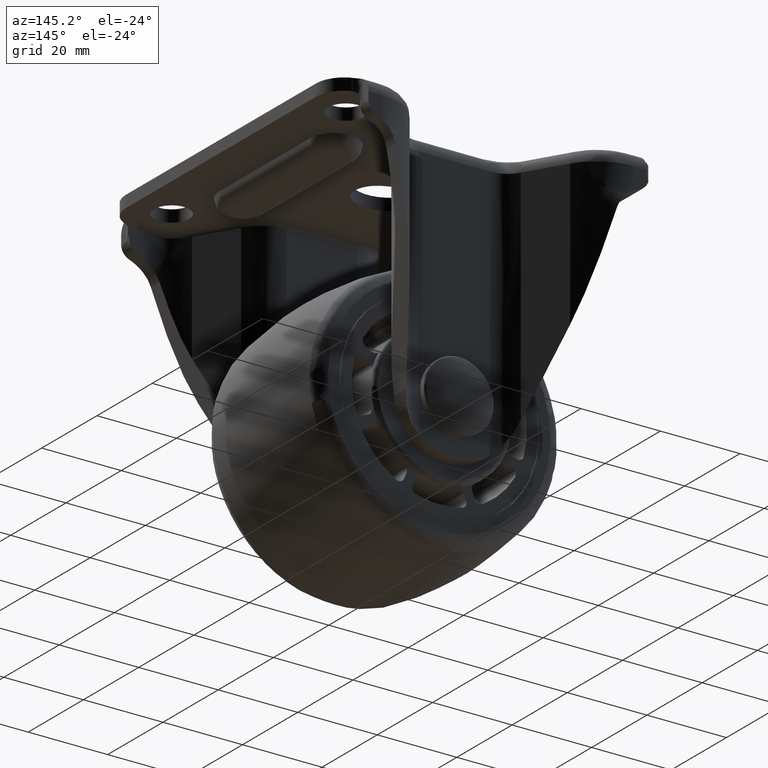
[diagram: clean part render]
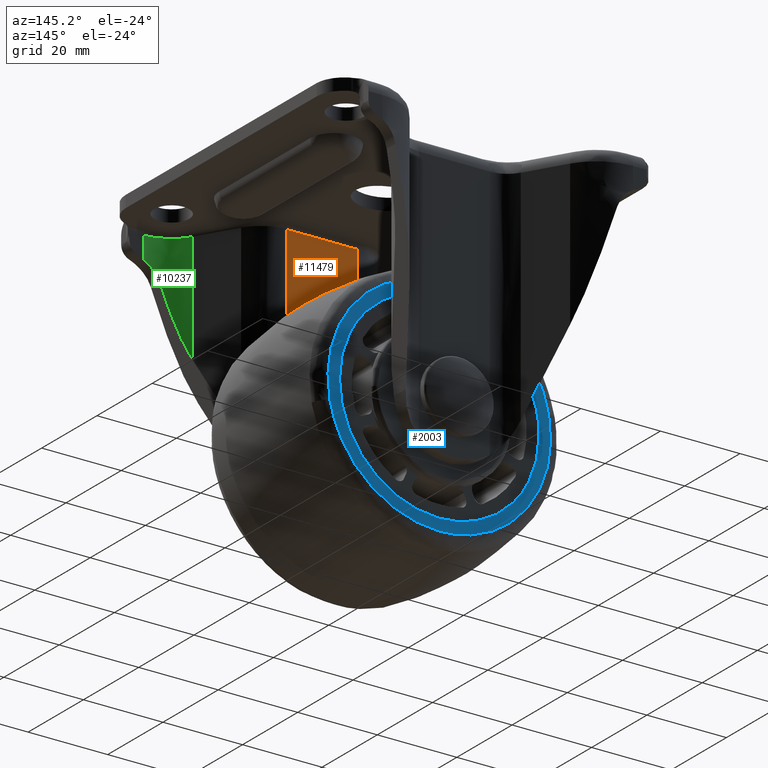
[diagram: same view with three faces highlighted in distinct colors, each labeled with its STEP entity id]
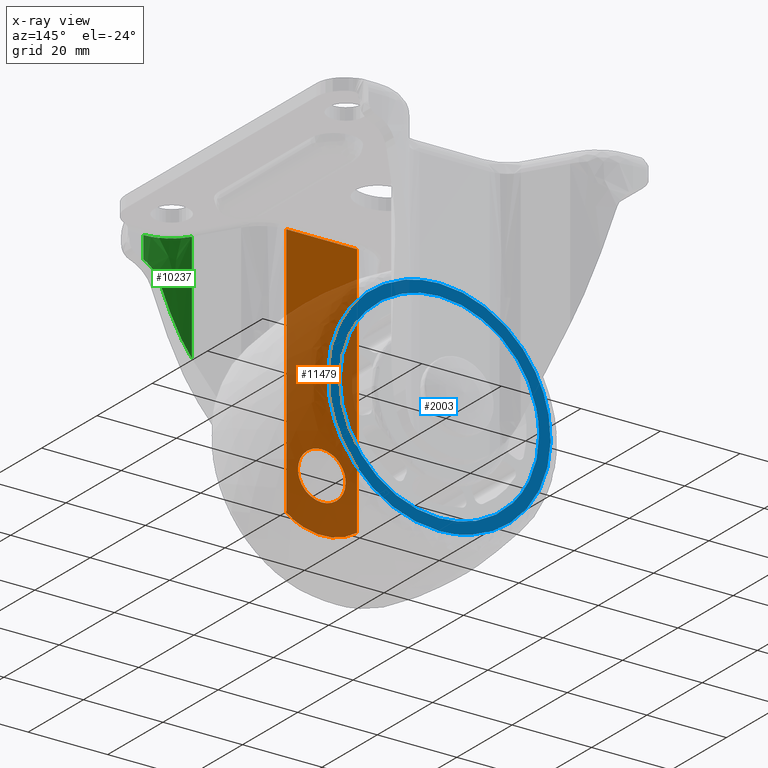
[diagram: x-ray of the same camera — body ghosted, the three highlighted faces saturated]
A machine part, auxiliary view with three faces highlighted in distinct colors.
The next image is the same camera in x-ray (body ghosted, the three faces saturated) — at least one of them is partly hidden behind the body in this view.
Their STEP definitions:

[orange] entity #11479 — the highlighted face is a freeform B-spline surface patch.
#9265=CARTESIAN_POINT('',(-4.130127253829357,-22.499997000002200,4.352245935374123));
#9266=VERTEX_POINT('',#9265);
#9267=CARTESIAN_POINT('',(-5.999999999999838,-22.499996999999851,-0.000001396979614));
#9268=VERTEX_POINT('',#9267);
#9269=CARTESIAN_POINT('',(-4.130127253829357,-22.499997000002200,4.352245935374123));
#9270=CARTESIAN_POINT('',(-4.553441643368708,-22.499997000002029,3.950867033075255));
#9271=CARTESIAN_POINT('',(-5.138845332192016,-22.499997000001539,3.204777223040784));
#9272=CARTESIAN_POINT('',(-5.819987399425205,-22.499997000000850,1.724313948742369));
#9273=CARTESIAN_POINT('',(-6.000437413251930,-22.499997000000182,0.684847521663678));
#9274=CARTESIAN_POINT('',(-5.999999999999838,-22.499996999999851,-0.000001396979614));
#9275=B_SPLINE_CURVE_WITH_KNOTS('',3,(#9269,#9270,#9271,#9272,#9273,#9274),.UNSPECIFIED.,.F.,.U.,(4,1,1,4),(0.000000043649202,1.749981452222673,2.815165169053650,4.869502438314698),.UNSPECIFIED.);
#9276=EDGE_CURVE('',#9266,#9268,#9275,.T.);
#9323=CARTESIAN_POINT('',(4.130127253829341,-22.499997000002189,-4.352245935374105));
#9324=VERTEX_POINT('',#9323);
#9330=CARTESIAN_POINT('',(0.0,-22.499996999999851,-6.0));
#9331=VERTEX_POINT('',#9330);
#9332=CARTESIAN_POINT('',(0.0,-22.499996999999851,-6.0));
#9333=CARTESIAN_POINT('',(0.450795490049021,-22.499997000000221,-6.000086516397657));
#9334=CARTESIAN_POINT('',(1.257412118632930,-22.499997000000299,-5.908650579430608));
#9335=CARTESIAN_POINT('',(2.367390492413930,-22.499997000001251,-5.547756098417890));
#9336=CARTESIAN_POINT('',(3.311968122547325,-22.499997000001610,-5.041101085681683));
#9337=CARTESIAN_POINT('',(3.871997163926011,-22.499997000002100,-4.597241153843157));
#9338=CARTESIAN_POINT('',(4.130127253829341,-22.499997000002189,-4.352245935374105));
#9339=B_SPLINE_CURVE_WITH_KNOTS('',3,(#9332,#9333,#9334,#9335,#9336,#9337,#9338),.UNSPECIFIED.,.F.,.U.,(4,1,1,1,4),(0.000000035592270,1.352367316623270,2.420005541752595,3.487680438584721,4.555335979050203),.UNSPECIFIED.);
#9340=EDGE_CURVE('',#9331,#9324,#9339,.T.);
#9342=CARTESIAN_POINT('',(-5.999999999999838,-22.499996999999851,-0.000001396979614));
#9343=CARTESIAN_POINT('',(-6.000023086217226,-22.499996999999841,-0.343613218627307));
#9344=CARTESIAN_POINT('',(-5.936601400131302,-22.499996999999841,-1.079921358328648));
#9345=CARTESIAN_POINT('',(-5.647205881875248,-22.499996999999940,-2.125755490163891));
#9346=CARTESIAN_POINT('',(-5.193337990886600,-22.499996999999709,-3.055545849298561));
#9347=CARTESIAN_POINT('',(-4.555721012143845,-22.499996999999968,-3.961064408039216));
#9348=CARTESIAN_POINT('',(-3.826259261117780,-22.499996999999851,-4.664112685940932));
#9349=CARTESIAN_POINT('',(-2.926603507291175,-22.499996999999841,-5.265149634956444));
#9350=CARTESIAN_POINT('',(-1.742341266816845,-22.499996999999880,-5.816663010592572));
#9351=CARTESIAN_POINT('',(-0.687294886531111,-22.499996999999791,-6.000460011594599));
#9352=CARTESIAN_POINT('',(0.0,-22.499996999999851,-6.0));
#9353=B_SPLINE_CURVE_WITH_KNOTS('',3,(#9342,#9343,#9344,#9345,#9346,#9347,#9348,#9349,#9350,#9351,#9352),.UNSPECIFIED.,.F.,.U.,(4,1,1,1,1,1,1,1,4),(0.000000152009948,1.030840567576297,2.208944418420963,3.239793992710176,4.123393643306499,5.522347370948843,6.258661234375847,7.363154419309906,9.424836309894799),.UNSPECIFIED.);
#9354=EDGE_CURVE('',#9268,#9331,#9353,.T.);
#9377=CARTESIAN_POINT('',(0.0,-22.499996999999851,6.0));
#9378=VERTEX_POINT('',#9377);
#9379=CARTESIAN_POINT('',(0.0,-22.499996999999851,6.0));
#9380=CARTESIAN_POINT('',(-0.450788434874711,-22.499997000000128,6.000059843482184));
#9381=CARTESIAN_POINT('',(-1.399796225174297,-22.499997000000668,5.892622321565265));
#9382=CARTESIAN_POINT('',(-2.837311071448159,-22.499997000001180,5.367986337136553));
#9383=CARTESIAN_POINT('',(-3.717219296337326,-22.499997000002072,4.744376456580225));
#9384=CARTESIAN_POINT('',(-4.130127253829357,-22.499997000002200,4.352245935374123));
#9385=B_SPLINE_CURVE_WITH_KNOTS('',3,(#9379,#9380,#9381,#9382,#9383,#9384),.UNSPECIFIED.,.F.,.U.,(4,1,1,4),(0.000000035592753,1.352367316623535,2.847084426144891,4.555335979050212),.UNSPECIFIED.);
#9386=EDGE_CURVE('',#9378,#9266,#9385,.T.);
#9388=CARTESIAN_POINT('',(5.999999999999838,-22.499996999999841,0.000001396979707));
#9389=VERTEX_POINT('',#9388);
#9390=CARTESIAN_POINT('',(5.999999999999838,-22.499996999999841,0.000001396979707));
#9391=CARTESIAN_POINT('',(6.000163368158743,-22.499996999999929,0.515432001934599));
#9392=CARTESIAN_POINT('',(5.894953435014236,-22.499996999999802,1.325284715811609));
#9393=CARTESIAN_POINT('',(5.534644106136241,-22.499996999999858,2.372508968148123));
#9394=CARTESIAN_POINT('',(5.058661697400599,-22.499996999999912,3.290062486199378));
#9395=CARTESIAN_POINT('',(4.375018762368638,-22.499996999999730,4.166079560350140));
#9396=CARTESIAN_POINT('',(3.493158300044612,-22.499997000000040,4.917299942122296));
#9397=CARTESIAN_POINT('',(2.471593553358666,-22.499996999999659,5.512781367085997));
#9398=CARTESIAN_POINT('',(1.300811723806056,-22.499996999999912,5.907510624143310));
#9399=CARTESIAN_POINT('',(0.417243111416493,-22.499996999999869,6.000050044701339));
#9400=CARTESIAN_POINT('',(0.0,-22.499996999999851,6.0));
#9401=B_SPLINE_CURVE_WITH_KNOTS('',3,(#9390,#9391,#9392,#9393,#9394,#9395,#9396,#9397,#9398,#9399,#9400),.UNSPECIFIED.,.F.,.U.,(4,1,1,1,1,1,1,1,4),(0.000000152012914,1.546243465384356,2.429841717990091,3.313437329582073,4.638832325522293,5.743251481139655,6.774100118434890,8.173101899288664,9.424836309894722),.UNSPECIFIED.);
#9402=EDGE_CURVE('',#9389,#9378,#9401,.T.);
#9404=CARTESIAN_POINT('',(4.130127253829341,-22.499997000002189,-4.352245935374105));
#9405=CARTESIAN_POINT('',(4.461346717343182,-22.499997000002018,-4.038069591427701));
#9406=CARTESIAN_POINT('',(4.969460680172463,-22.499997000001692,-3.431402418470786));
#9407=CARTESIAN_POINT('',(5.531621919380246,-22.499997000001152,-2.404602122561565));
#9408=CARTESIAN_POINT('',(5.904020351010472,-22.499997000000452,-1.293414863453130));
#9409=CARTESIAN_POINT('',(6.000086778270428,-22.499997000000320,-0.456516994118505));
#9410=CARTESIAN_POINT('',(5.999999999999838,-22.499996999999841,0.000001396979707));
#9411=B_SPLINE_CURVE_WITH_KNOTS('',3,(#9404,#9405,#9406,#9407,#9408,#9409,#9410),.UNSPECIFIED.,.F.,.U.,(4,1,1,1,4),(0.000000043649115,1.369549477616621,2.358689233480969,3.499953004327731,4.869502438314786),.UNSPECIFIED.);
#9412=EDGE_CURVE('',#9324,#9389,#9411,.T.);
#10280=CARTESIAN_POINT('',(8.881149699124109,-22.499996999999851,-10.588224849900380));
#10281=VERTEX_POINT('',#10280);
#10282=CARTESIAN_POINT('',(8.881149699124109,-22.499996999999901,53.500003000000000));
#10283=VERTEX_POINT('',#10282);
#10284=CARTESIAN_POINT('',(8.881149699124109,-22.499996999999851,-10.588224849900380));
#10285=CARTESIAN_POINT('',(8.881149699124109,-22.499996999999901,53.500003000000000));
#10286=QUASI_UNIFORM_CURVE('',1,(#10284,#10285),.UNSPECIFIED.,.F.,.U.);
#10287=EDGE_CURVE('',#10281,#10283,#10286,.T.);
#11435=CARTESIAN_POINT('',(-9.768376519639922,-22.499996999999901,56.846653259362071));
#11436=CARTESIAN_POINT('',(-9.768376519639922,-22.499996999999901,-16.846656848655840));
#11437=CARTESIAN_POINT('',(9.768376996061825,-22.499996999999901,56.846653259362071));
#11438=CARTESIAN_POINT('',(9.768376996061825,-22.499996999999901,-16.846656848655840));
#11439=B_SPLINE_SURFACE_WITH_KNOTS('',1,1,((#11435,#11437),(#11436,#11438)),.UNSPECIFIED.,.F.,.F.,.U.,(2,2),(2,2),(0.0,73.693310108017911),(0.0,19.536753515701751),.UNSPECIFIED.);
#11440=CARTESIAN_POINT('',(-8.881149699124199,-22.499996999999851,-10.588224849900261));
#11441=VERTEX_POINT('',#11440);
#11442=CARTESIAN_POINT('',(-8.881149699124199,-22.499996999999851,53.500003000000000));
#11443=VERTEX_POINT('',#11442);
#11444=CARTESIAN_POINT('',(-8.881149699124199,-22.499996999999851,-10.588224849900261));
#11445=CARTESIAN_POINT('',(-8.881149699124199,-22.499996999999851,53.500003000000000));
#11446=QUASI_UNIFORM_CURVE('',1,(#11444,#11445),.UNSPECIFIED.,.F.,.U.);
#11447=EDGE_CURVE('',#11441,#11443,#11446,.T.);
#11448=ORIENTED_EDGE('',*,*,#11447,.T.);
#11449=CARTESIAN_POINT('',(-8.881149699124199,-22.499996999999851,53.500003000000000));
#11450=CARTESIAN_POINT('',(8.881149699124109,-22.499996999999901,53.500003000000000));
#11451=QUASI_UNIFORM_CURVE('',1,(#11449,#11450),.UNSPECIFIED.,.F.,.U.);
#11452=EDGE_CURVE('',#11443,#10283,#11451,.T.);
#11453=ORIENTED_EDGE('',*,*,#11452,.T.);
#11454=ORIENTED_EDGE('',*,*,#10287,.F.);
#11455=CARTESIAN_POINT('',(-8.881149699124199,-22.499996999999851,-10.588224849900261));
#11456=CARTESIAN_POINT('',(-8.003607832519460,-22.499996999999841,-11.233204240560219));
#11457=CARTESIAN_POINT('',(-6.365754512921816,-22.499996999999830,-12.180886370924020));
#11458=CARTESIAN_POINT('',(-4.162801986321525,-22.499996999999919,-12.951741968923900));
#11459=CARTESIAN_POINT('',(-2.273873686656827,-22.499996999999670,-13.359980792118151));
#11460=CARTESIAN_POINT('',(-0.348126100300443,-22.499997000000420,-13.551291613181130));
#11461=CARTESIAN_POINT('',(2.131759955150131,-22.499996999999361,-13.428532215796210));
#11462=CARTESIAN_POINT('',(4.312489957043629,-22.499997000000160,-12.923171846836739));
#11463=CARTESIAN_POINT('',(6.667458579177092,-22.499996999999649,-12.006265035334740));
#11464=CARTESIAN_POINT('',(8.003607268865578,-22.499996999999968,-11.233216174068360));
#11465=CARTESIAN_POINT('',(8.881149699124109,-22.499996999999851,-10.588224849900380));
#11466=B_SPLINE_CURVE_WITH_KNOTS('',3,(#11455,#11456,#11457,#11458,#11459,#11460,#11461,#11462,#11463,#11464,#11465),.UNSPECIFIED.,.F.,.U.,(4,1,1,1,1,1,1,1,4),(0.000000054522978,3.267180752254211,5.643324096917235,6.979903055922604,9.059051894187329,11.435122852230750,14.405315932280789,15.741894478587181,19.009075791508600),.UNSPECIFIED.);
#11467=EDGE_CURVE('',#11441,#10281,#11466,.T.);
#11468=ORIENTED_EDGE('',*,*,#11467,.F.);
#11469=EDGE_LOOP('',(#11448,#11453,#11454,#11468));
#11470=FACE_OUTER_BOUND('',#11469,.T.);
#11471=ORIENTED_EDGE('',*,*,#9402,.T.);
#11472=ORIENTED_EDGE('',*,*,#9386,.T.);
#11473=ORIENTED_EDGE('',*,*,#9276,.T.);
#11474=ORIENTED_EDGE('',*,*,#9354,.T.);
#11475=ORIENTED_EDGE('',*,*,#9340,.T.);
#11476=ORIENTED_EDGE('',*,*,#9412,.T.);
#11477=EDGE_LOOP('',(#11471,#11472,#11473,#11474,#11475,#11476));
#11478=FACE_BOUND('',#11477,.T.);
#11479=ADVANCED_FACE('',(#11470,#11478),#11439,.F.);

[blue] entity #2003 — the highlighted face is a freeform B-spline surface patch.
#1484=CARTESIAN_POINT('',(27.502757301101720,19.999999999999879,-5.246431544666812));
#1485=VERTEX_POINT('',#1484);
#1486=CARTESIAN_POINT('',(0.0,19.999999999999751,27.998691090506650));
#1487=VERTEX_POINT('',#1486);
#1488=CARTESIAN_POINT('',(27.502757301101720,19.999999999999879,-5.246431544666812));
#1489=CARTESIAN_POINT('',(27.743164598492061,19.999999999999869,-3.986416941224706));
#1490=CARTESIAN_POINT('',(28.058068481342779,19.999999999999829,-1.369432952036780));
#1491=CARTESIAN_POINT('',(27.971277000315570,19.999999999999918,2.745175214878927));
#1492=CARTESIAN_POINT('',(27.287347839801480,19.999999999999758,6.675098508161810));
#1493=CARTESIAN_POINT('',(25.941157680191729,19.999999999999758,10.832335335407549));
#1494=CARTESIAN_POINT('',(24.169408895971429,20.000000000000060,14.339463418104650));
#1495=CARTESIAN_POINT('',(22.017997854695960,19.999999999999439,17.381134434863998));
#1496=CARTESIAN_POINT('',(19.641022460410380,20.000000000000071,20.080168328336971));
#1497=CARTESIAN_POINT('',(16.861405144192119,19.999999999999719,22.475501605578319));
#1498=CARTESIAN_POINT('',(13.392849185438349,19.999999999999680,24.683821317993711));
#1499=CARTESIAN_POINT('',(10.473531437630520,19.999999999999790,26.033121039621602));
#1500=CARTESIAN_POINT('',(7.183060958212796,19.999999999999901,27.121934818699099));
#1501=CARTESIAN_POINT('',(3.912394890526687,19.999999999999460,27.817687081596770));
#1502=CARTESIAN_POINT('',(1.282756755907099,19.999999999999499,27.998740291143879));
#1503=CARTESIAN_POINT('',(0.0,19.999999999999751,27.998691090506650));
#1504=B_SPLINE_CURVE_WITH_KNOTS('',3,(#1488,#1489,#1490,#1491,#1492,#1493,#1494,#1495,#1496,#1497,#1498,#1499,#1500,#1501,#1502,#1503),.UNSPECIFIED.,.F.,.U.,(4,1,1,1,1,1,1,1,1,1,1,1,1,4),(0.000000070770831,3.848236809704858,7.888951305254281,12.314492726245311,15.777946739165349,20.973128510498000,24.051795542403731,26.937902894380962,31.748289763801989,35.019334425048093,39.252444968296103,41.369018298731653,45.409692849141948,49.257966987562590),.UNSPECIFIED.);
#1505=EDGE_CURVE('',#1485,#1487,#1504,.T.);
#1507=CARTESIAN_POINT('',(-27.502757301101720,19.999999999999869,5.246431544666804));
#1508=VERTEX_POINT('',#1507);
#1509=CARTESIAN_POINT('',(0.0,19.999999999999751,27.998691090506650));
#1510=CARTESIAN_POINT('',(-1.864581548584949,19.999999999999790,27.998924161802069));
#1511=CARTESIAN_POINT('',(-5.240912376388767,19.999999999999741,27.660176566823282));
#1512=CARTESIAN_POINT('',(-9.564460870913189,19.999999999999790,26.413169154524940));
#1513=CARTESIAN_POINT('',(-13.019801682003550,19.999999999999851,24.865192470680480));
#1514=CARTESIAN_POINT('',(-16.392393620607120,19.999999999999609,22.831490981883320));
#1515=CARTESIAN_POINT('',(-19.815319122664839,20.000000000000369,19.984281892225180));
#1516=CARTESIAN_POINT('',(-23.014279828734150,19.999999999999140,16.197561375411809));
#1517=CARTESIAN_POINT('',(-25.833838387810822,20.000000000000270,11.340626609799610));
#1518=CARTESIAN_POINT('',(-27.069014077244891,19.999999999999719,7.523685507394849));
#1519=CARTESIAN_POINT('',(-27.502757301101720,19.999999999999869,5.246431544666804));
#1520=B_SPLINE_CURVE_WITH_KNOTS('',3,(#1509,#1510,#1511,#1512,#1513,#1514,#1515,#1516,#1517,#1518,#1519),.UNSPECIFIED.,.F.,.U.,(4,1,1,1,1,1,1,1,4),(0.000000053910462,5.593724760074849,10.129213976309829,13.455222866426270,16.932423127280771,21.921393261906339,26.759257935103250,31.748281384768859,38.702659205214268),.UNSPECIFIED.);
#1521=EDGE_CURVE('',#1487,#1508,#1520,.T.);
#1580=CARTESIAN_POINT('',(0.0,20.0,-27.998691090506650));
#1581=VERTEX_POINT('',#1580);
#1582=CARTESIAN_POINT('',(0.0,20.0,-27.998691090506650));
#1583=CARTESIAN_POINT('',(1.411035472931100,20.000000000000071,-27.998766732122132));
#1584=CARTESIAN_POINT('',(3.829920536427983,19.999999999999840,-27.815430776140879));
#1585=CARTESIAN_POINT('',(7.634428674420414,20.000000000000110,-27.023703583116799));
#1586=CARTESIAN_POINT('',(11.068647177458731,19.999999999999670,-25.818667910256199));
#1587=CARTESIAN_POINT('',(14.341597858067111,20.000000000000352,-24.123509456208090));
#1588=CARTESIAN_POINT('',(17.347901098481032,19.999999999999670,-22.081551067869391));
#1589=CARTESIAN_POINT('',(19.948862793094030,19.999999999999631,-19.758846594525622));
#1590=CARTESIAN_POINT('',(22.488524090276620,20.0,-16.817560632481030));
#1591=CARTESIAN_POINT('',(24.621532735155942,20.000000000000419,-13.561810930865541));
#1592=CARTESIAN_POINT('',(26.438682654588920,19.999999999998732,-9.558052108725883));
#1593=CARTESIAN_POINT('',(27.219578738944470,20.000000000000661,-6.731492296372188));
#1594=CARTESIAN_POINT('',(27.502757301101720,19.999999999999879,-5.246431544666812));
#1595=B_SPLINE_CURVE_WITH_KNOTS('',3,(#1582,#1583,#1584,#1585,#1586,#1587,#1588,#1589,#1590,#1591,#1592,#1593,#1594),.UNSPECIFIED.,.F.,.U.,(4,1,1,1,1,1,1,1,1,1,4),(0.000000053931920,4.233099271915975,7.256744849527941,11.641042820726190,15.118248801799670,18.293091666491531,22.526149759230741,25.549795738470252,29.934092232752000,34.167216398744742,38.702659205214253),.UNSPECIFIED.);
#1596=EDGE_CURVE('',#1581,#1485,#1595,.T.);
#1602=CARTESIAN_POINT('',(-27.502757301101720,19.999999999999869,5.246431544666804));
#1603=CARTESIAN_POINT('',(-27.743147686778041,19.999999999999851,3.986418271306176));
#1604=CARTESIAN_POINT('',(-28.096567708367349,19.999999999999890,1.050279841555419));
#1605=CARTESIAN_POINT('',(-27.941309108740089,19.999999999999869,-3.003553819527101));
#1606=CARTESIAN_POINT('',(-27.204368139600700,19.999999999999851,-6.918168946015753));
#1607=CARTESIAN_POINT('',(-26.107264102019020,19.999999999999961,-10.346288043054630));
#1608=CARTESIAN_POINT('',(-24.396011081419459,19.999999999999929,-13.946232466822989));
#1609=CARTESIAN_POINT('',(-22.315217253494499,19.999999999999691,-17.043834432175679));
#1610=CARTESIAN_POINT('',(-19.725875927242640,20.000000000000391,-19.983728515323339));
#1611=CARTESIAN_POINT('',(-17.206621345333261,19.999999999999002,-22.185110676411259));
#1612=CARTESIAN_POINT('',(-14.273930128326169,20.000000000001560,-24.152904403678772));
#1613=CARTESIAN_POINT('',(-11.140751267709270,19.999999999999179,-25.788398736249409));
#1614=CARTESIAN_POINT('',(-7.562308311563520,19.999999999999929,-27.054919830959982));
#1615=CARTESIAN_POINT('',(-3.719974201089820,20.000000000000501,-27.830891413605201));
#1616=CARTESIAN_POINT('',(-1.282758380863918,19.999999999999641,-27.998748979232861));
#1617=CARTESIAN_POINT('',(0.0,20.0,-27.998691090506650));
#1618=B_SPLINE_CURVE_WITH_KNOTS('',3,(#1602,#1603,#1604,#1605,#1606,#1607,#1608,#1609,#1610,#1611,#1612,#1613,#1614,#1615,#1616,#1617),.UNSPECIFIED.,.F.,.U.,(4,1,1,1,1,1,1,1,1,1,1,1,1,4),(0.000000070765886,3.848236809700957,8.851024074508395,12.122077644867010,15.777946739164101,19.626258409457819,24.051795542403941,26.937902894381399,31.363446072621532,34.057263065700269,37.520718025766577,41.946251267328833,45.409692849141919,49.257966987562561),.UNSPECIFIED.);
#1619=EDGE_CURVE('',#1508,#1581,#1618,.T.);
#1898=CARTESIAN_POINT('',(-30.793287650750390,19.999999999999751,30.795760221914470));
#1899=CARTESIAN_POINT('',(-30.793287650750390,19.999999999999751,-30.795761723881299));
#1900=CARTESIAN_POINT('',(30.793315685250938,19.999999999999751,30.795760221914470));
#1901=CARTESIAN_POINT('',(30.793315685250938,19.999999999999751,-30.795761723881309));
#1902=B_SPLINE_SURFACE_WITH_KNOTS('',1,1,((#1898,#1900),(#1899,#1901)),.UNSPECIFIED.,.F.,.F.,.U.,(2,2),(2,2),(0.0,61.591521945795769),(0.0,61.586603336001332),.UNSPECIFIED.);
#1903=ORIENTED_EDGE('',*,*,#1619,.F.);
#1904=ORIENTED_EDGE('',*,*,#1521,.F.);
#1905=ORIENTED_EDGE('',*,*,#1505,.F.);
#1906=ORIENTED_EDGE('',*,*,#1596,.F.);
#1907=EDGE_LOOP('',(#1903,#1904,#1905,#1906));
#1908=FACE_OUTER_BOUND('',#1907,.T.);
#1909=CARTESIAN_POINT('',(1.776357E-014,20.0,25.100000000000001));
#1910=VERTEX_POINT('',#1909);
#1911=CARTESIAN_POINT('',(-25.099999999999952,20.0,-0.000001370473348));
#1912=VERTEX_POINT('',#1911);
#1913=CARTESIAN_POINT('',(1.776357E-014,20.0,25.100000000000001));
#1914=CARTESIAN_POINT('',(-1.437442980609367,20.0,25.100132070542472));
#1915=CARTESIAN_POINT('',(-3.901578004640133,20.000000000000011,24.887703587884051));
#1916=CARTESIAN_POINT('',(-7.554674348233620,20.0,24.020188210254169));
#1917=CARTESIAN_POINT('',(-10.673467631630221,20.0,22.806144697992170));
#1918=CARTESIAN_POINT('',(-13.457659277525121,20.0,21.251322359756031));
#1919=CARTESIAN_POINT('',(-16.004756086152689,20.000000000000028,19.422187665867352));
#1920=CARTESIAN_POINT('',(-18.607130500423601,19.999999999999918,17.004863934866510));
#1921=CARTESIAN_POINT('',(-20.889557428850321,20.000000000000281,14.080127070640989));
#1922=CARTESIAN_POINT('',(-22.461291964615260,19.999999999999279,11.305450027476830));
#1923=CARTESIAN_POINT('',(-23.549618424636499,20.000000000000242,8.808966095563685));
#1924=CARTESIAN_POINT('',(-24.349363171188848,20.000000000000071,6.311216504304358));
#1925=CARTESIAN_POINT('',(-24.951196614206090,19.999999999999641,3.285557641668076));
#1926=CARTESIAN_POINT('',(-25.100055495223799,20.000000000000419,1.180746992967210));
#1927=CARTESIAN_POINT('',(-25.099999999999952,20.0,-0.000001370473348));
#1928=B_SPLINE_CURVE_WITH_KNOTS('',3,(#1913,#1914,#1915,#1916,#1917,#1918,#1919,#1920,#1921,#1922,#1923,#1924,#1925,#1926,#1927),.UNSPECIFIED.,.F.,.U.,(4,1,1,1,1,1,1,1,1,1,1,1,4),(0.000000073614530,4.312309001905156,7.392560964601049,11.242877611880900,14.323129400848149,16.941321752825459,20.637591771806580,24.949904492514982,28.030159913331389,30.186338815333059,33.112567606331439,35.884805510532971,39.427050424476590),.UNSPECIFIED.);
#1929=EDGE_CURVE('',#1910,#1912,#1928,.T.);
#1930=ORIENTED_EDGE('',*,*,#1929,.T.);
#1931=CARTESIAN_POINT('',(-18.505661370402510,20.0,-16.957314480128709));
#1932=VERTEX_POINT('',#1931);
#1933=CARTESIAN_POINT('',(-25.099999999999952,20.0,-0.000001370473348));
#1934=CARTESIAN_POINT('',(-25.100018718089910,20.000000000000028,-1.018188191695123));
#1935=CARTESIAN_POINT('',(-24.967097735639140,19.999999999999950,-3.200023236704373));
#1936=CARTESIAN_POINT('',(-24.422022673153862,20.000000000000071,-6.015279485568550));
#1937=CARTESIAN_POINT('',(-23.385220411002070,20.000000000000121,-9.351730334719353));
#1938=CARTESIAN_POINT('',(-21.661183704264321,19.999999999999659,-13.009611378019409));
#1939=CARTESIAN_POINT('',(-19.652298900826459,20.000000000000359,-15.706309772172199));
#1940=CARTESIAN_POINT('',(-18.505661370402510,20.0,-16.957314480128709));
#1941=B_SPLINE_CURVE_WITH_KNOTS('',3,(#1933,#1934,#1935,#1936,#1937,#1938,#1939,#1940),.UNSPECIFIED.,.F.,.U.,(4,1,1,1,1,4),(0.000000016592132,3.054566406169963,6.545505109483504,8.581895395505025,13.527375580099861,18.618324655522230),.UNSPECIFIED.);
#1942=EDGE_CURVE('',#1912,#1932,#1941,.T.);
#1943=ORIENTED_EDGE('',*,*,#1942,.T.);
#1944=CARTESIAN_POINT('',(1.776357E-014,20.0,-25.100000000000009));
#1945=VERTEX_POINT('',#1944);
#1946=CARTESIAN_POINT('',(-18.505661370402510,20.0,-16.957314480128709));
#1947=CARTESIAN_POINT('',(-17.370907062842399,20.0,-18.196006330374338));
#1948=CARTESIAN_POINT('',(-15.501555057529460,20.000000000000021,-19.863891331375822));
#1949=CARTESIAN_POINT('',(-12.233403247282199,19.999999999999940,-22.003533283481719));
#1950=CARTESIAN_POINT('',(-9.389073425096857,20.000000000000039,-23.366665265452621));
#1951=CARTESIAN_POINT('',(-6.078739363573293,19.999999999999989,-24.418417507656709));
#1952=CARTESIAN_POINT('',(-3.088787583267302,19.999999999999680,-24.976681650463210));
#1953=CARTESIAN_POINT('',(-0.975402728308277,20.000000000000341,-25.100020277180089));
#1954=CARTESIAN_POINT('',(1.776357E-014,20.0,-25.100000000000009));
#1955=B_SPLINE_CURVE_WITH_KNOTS('',3,(#1946,#1947,#1948,#1949,#1950,#1951,#1952,#1953,#1954),.UNSPECIFIED.,.F.,.U.,(4,1,1,1,1,1,4),(0.000000021998005,5.039612326472110,7.478147530062534,11.704885933291781,14.468562253664610,17.882509752449451,20.808724466771530),.UNSPECIFIED.);
#1956=EDGE_CURVE('',#1932,#1945,#1955,.T.);
#1957=ORIENTED_EDGE('',*,*,#1956,.T.);
#1958=CARTESIAN_POINT('',(25.099999999999980,20.0,0.000001370472382));
#1959=VERTEX_POINT('',#1958);
#1960=CARTESIAN_POINT('',(1.776357E-014,20.0,-25.100000000000009));
#1961=CARTESIAN_POINT('',(1.488786484701000,20.000000000000028,-25.100131255836519));
#1962=CARTESIAN_POINT('',(3.850243668663133,19.999999999999979,-24.889255809672949));
#1963=CARTESIAN_POINT('',(7.454025948002765,19.999999999999979,-24.045088943451471));
#1964=CARTESIAN_POINT('',(10.247452193644040,20.000000000000039,-22.987211520707419));
#1965=CARTESIAN_POINT('',(13.016684431528059,19.999999999999940,-21.517856970919059));
#1966=CARTESIAN_POINT('',(15.188765039619430,20.000000000000309,-20.047170290692669));
#1967=CARTESIAN_POINT('',(17.379770317727669,19.999999999999499,-18.180518097163219));
#1968=CARTESIAN_POINT('',(19.141585808709191,20.000000000000242,-16.307135876547079));
#1969=CARTESIAN_POINT('',(20.852822739881109,19.999999999999531,-14.057978462270651));
#1970=CARTESIAN_POINT('',(22.607469190490999,20.000000000001041,-11.151190379220321));
#1971=CARTESIAN_POINT('',(24.016016523228931,19.999999999999869,-7.660042386973456));
#1972=CARTESIAN_POINT('',(24.907050219541631,19.999999999999631,-3.747577547489786));
#1973=CARTESIAN_POINT('',(25.100092305025338,20.000000000000110,-1.334762250005804));
#1974=CARTESIAN_POINT('',(25.099999999999980,20.0,0.000001370472382));
#1975=B_SPLINE_CURVE_WITH_KNOTS('',3,(#1960,#1961,#1962,#1963,#1964,#1965,#1966,#1967,#1968,#1969,#1970,#1971,#1972,#1973,#1974),.UNSPECIFIED.,.F.,.U.,(4,1,1,1,1,1,1,1,1,1,1,1,4),(0.000000073567172,4.466337519965713,7.084548357390943,11.088859536148160,13.399051415206509,16.479284456687040,18.943510535528979,22.023701028485281,24.179848993947420,27.414117389161749,32.188491950440337,35.422766213436788,39.427050424476050),.UNSPECIFIED.);
#1976=EDGE_CURVE('',#1945,#1959,#1975,.T.);
#1977=ORIENTED_EDGE('',*,*,#1976,.T.);
#1978=CARTESIAN_POINT('',(18.505661370402368,20.0,16.957314480128542));
#1979=VERTEX_POINT('',#1978);
#1980=CARTESIAN_POINT('',(25.099999999999980,20.0,0.000001370472382));
#1981=CARTESIAN_POINT('',(25.100319372435720,19.999999999999972,1.793976590771170));
#1982=CARTESIAN_POINT('',(24.760599567305700,20.000000000000082,4.945365170717195));
#1983=CARTESIAN_POINT('',(23.358047250596819,20.000000000000050,9.552479079192160));
#1984=CARTESIAN_POINT('',(21.329595520440929,19.999999999999812,13.494815759278890));
#1985=CARTESIAN_POINT('',(19.455644908631410,20.000000000000160,15.920705365630580));
#1986=CARTESIAN_POINT('',(18.505661370402368,20.0,16.957314480128542));
#1987=B_SPLINE_CURVE_WITH_KNOTS('',3,(#1980,#1981,#1982,#1983,#1984,#1985,#1986),.UNSPECIFIED.,.F.,.U.,(4,1,1,1,4),(0.000000016590796,5.381860144774382,9.454595446646900,14.400111420661430,18.618324655523089),.UNSPECIFIED.);
#1988=EDGE_CURVE('',#1959,#1979,#1987,.T.);
#1989=ORIENTED_EDGE('',*,*,#1988,.T.);
#1990=CARTESIAN_POINT('',(18.505661370402368,20.0,16.957314480128542));
#1991=CARTESIAN_POINT('',(17.370940136381201,20.000000000000011,18.196042140243140));
#1992=CARTESIAN_POINT('',(15.257692203950000,20.000000000000021,20.081411713535420));
#1993=CARTESIAN_POINT('',(11.714838939726160,19.999999999999950,22.303884885894661));
#1994=CARTESIAN_POINT('',(8.425826828162141,19.999999999999929,23.738373082306680));
#1995=CARTESIAN_POINT('',(4.443428666983678,19.999999999999979,24.821417680913690));
#1996=CARTESIAN_POINT('',(1.679893411847450,20.000000000000099,25.100269440042229));
#1997=CARTESIAN_POINT('',(1.776357E-014,20.0,25.100000000000001));
#1998=B_SPLINE_CURVE_WITH_KNOTS('',3,(#1990,#1991,#1992,#1993,#1994,#1995,#1996,#1997),.UNSPECIFIED.,.F.,.U.,(4,1,1,1,1,4),(0.000000022002972,5.039612326476183,8.453558773423609,12.517746082125820,15.769112162303170,20.808724466771370),.UNSPECIFIED.);
#1999=EDGE_CURVE('',#1979,#1910,#1998,.T.);
#2000=ORIENTED_EDGE('',*,*,#1999,.T.);
#2001=EDGE_LOOP('',(#1930,#1943,#1957,#1977,#1989,#2000));
#2002=FACE_BOUND('',#2001,.T.);
#2003=ADVANCED_FACE('',(#1908,#2002),#1902,.F.);

[green] entity #10237 — the highlighted face is a freeform B-spline surface patch.
#10151=CARTESIAN_POINT('',(31.925065444695239,-41.742335259190099,25.278508734923040));
#10152=CARTESIAN_POINT('',(31.925065444695239,-41.742335259190099,54.205540356626933));
#10153=CARTESIAN_POINT('',(25.515650184506740,-41.990950029904134,25.278508734923040));
#10154=CARTESIAN_POINT('',(25.515650184506740,-41.990950029904134,54.205540356626926));
#10155=CARTESIAN_POINT('',(22.514817755554674,-36.321962641039704,25.278508734923040));
#10156=CARTESIAN_POINT('',(22.514817755554674,-36.321962641039704,54.205540356626926));
#10164=(BOUNDED_SURFACE()B_SPLINE_SURFACE(1,2,((#10151,#10153,#10155),(#10152,#10154,#10156)),.UNSPECIFIED.,.F.,.F.,.U.)B_SPLINE_SURFACE_WITH_KNOTS((2,2),(3,3),(0.0,28.927031621703890),(0.0,11.762217759036000),.UNSPECIFIED.)GEOMETRIC_REPRESENTATION_ITEM()RATIONAL_B_SPLINE_SURFACE(((1.0,0.842976389010151,0.991618199317396),(1.0,0.842976389010151,0.991618199317396)))REPRESENTATION_ITEM('')SURFACE());
#10165=CARTESIAN_POINT('',(22.761161290808200,-36.760802781773897,25.966837863339549));
#10166=VERTEX_POINT('',#10165);
#10167=CARTESIAN_POINT('',(22.761161290808200,-36.760802781773897,53.500003000000000));
#10168=VERTEX_POINT('',#10167);
#10169=CARTESIAN_POINT('',(22.761161290808200,-36.760802781773897,25.966837863339549));
#10170=CARTESIAN_POINT('',(22.761161290808200,-36.760802781773897,53.500003000000000));
#10171=QUASI_UNIFORM_CURVE('',1,(#10169,#10170),.UNSPECIFIED.,.F.,.U.);
#10172=EDGE_CURVE('',#10166,#10168,#10171,.T.);
#10173=ORIENTED_EDGE('',*,*,#10172,.T.);
#10174=CARTESIAN_POINT('',(31.529715012457899,-41.750000000000000,53.500003000000000));
#10175=VERTEX_POINT('',#10174);
#10176=CARTESIAN_POINT('',(22.761161290808200,-36.760802781773897,53.500003000000000));
#10177=CARTESIAN_POINT('',(23.069986420566661,-37.280578454585772,53.500003000000092));
#10178=CARTESIAN_POINT('',(23.796574151866299,-38.287363063427527,53.500002999999822));
#10179=CARTESIAN_POINT('',(24.992556446391870,-39.432819961867629,53.500003000000099));
#10180=CARTESIAN_POINT('',(26.368899557147522,-40.395283501646652,53.500003000000042));
#10181=CARTESIAN_POINT('',(27.954272713074769,-41.174345815139212,53.500002999999708));
#10182=CARTESIAN_POINT('',(29.770875265492329,-41.654910238191484,53.500003000000447));
#10183=CARTESIAN_POINT('',(31.007567675279208,-41.750013609056623,53.500002999999531));
#10184=CARTESIAN_POINT('',(31.529715012457899,-41.750000000000000,53.500003000000000));
#10185=B_SPLINE_CURVE_WITH_KNOTS('',3,(#10176,#10177,#10178,#10179,#10180,#10181,#10182,#10183,#10184),.UNSPECIFIED.,.F.,.U.,(4,1,1,1,1,1,4),(0.000000048416775,1.813799555159918,3.710063887717749,4.946752993888118,6.842965795101206,8.986578680709725,10.553029634401350),.UNSPECIFIED.);
#10186=EDGE_CURVE('',#10168,#10175,#10185,.T.);
#10187=ORIENTED_EDGE('',*,*,#10186,.T.);
#10188=CARTESIAN_POINT('',(31.529715012457899,-41.750000000000000,48.035833809487499));
#10189=VERTEX_POINT('',#10188);
#10190=CARTESIAN_POINT('',(31.529715012457899,-41.750000000000000,48.035833809487499));
#10191=CARTESIAN_POINT('',(31.529715012457899,-41.750000000000000,53.500003000000000));
#10192=QUASI_UNIFORM_CURVE('',1,(#10190,#10191),.UNSPECIFIED.,.F.,.U.);
#10193=EDGE_CURVE('',#10189,#10175,#10192,.T.);
#10194=ORIENTED_EDGE('',*,*,#10193,.F.);
#10195=CARTESIAN_POINT('',(27.895999372100299,-41.080797940844398,43.571998204343103));
#10196=VERTEX_POINT('',#10195);
#10197=CARTESIAN_POINT('',(27.895999372100299,-41.080797940844398,43.571998204343103));
#10198=CARTESIAN_POINT('',(27.965677484333309,-41.107363510059081,43.810894817292159));
#10199=CARTESIAN_POINT('',(28.046633900918899,-41.137367463758167,44.043769795287673));
#10200=CARTESIAN_POINT('',(28.230178828543959,-41.202073864498310,44.498263861933069));
#10201=CARTESIAN_POINT('',(28.332770248982190,-41.236778796928192,44.719881149630062));
#10202=CARTESIAN_POINT('',(28.559459831399010,-41.308674266555130,45.152263614149049));
#10203=CARTESIAN_POINT('',(28.683556739616311,-41.345868628217502,45.363028808763467));
#10204=CARTESIAN_POINT('',(28.886308589350740,-41.401767214876543,45.671077822949279));
#10205=CARTESIAN_POINT('',(28.956840953326019,-41.420460111033648,45.772643144499341));
#10206=CARTESIAN_POINT('',(29.102765787694189,-41.457349856953627,45.971898852707298));
#10207=CARTESIAN_POINT('',(29.177947261228649,-41.475496868596963,46.069329210034212));
#10208=CARTESIAN_POINT('',(29.410063244056460,-41.528590830258160,46.355190286217251));
#10209=CARTESIAN_POINT('',(29.573550933458112,-41.562193677863100,46.537209128648719));
#10210=CARTESIAN_POINT('',(29.918016544753989,-41.623382162720333,46.884539853889201));
#10211=CARTESIAN_POINT('',(30.098993437278509,-41.650974582331642,47.049851645519652));
#10212=CARTESIAN_POINT('',(30.384030762032928,-41.685905017953623,47.285154168898238));
#10213=CARTESIAN_POINT('',(30.481309980544399,-41.696470159464759,47.361472972132177));
#10214=CARTESIAN_POINT('',(30.680540484013779,-41.715083001534829,47.509799862284922));
#10215=CARTESIAN_POINT('',(30.782726480045500,-41.723142472820378,47.581957013683677));
#10216=CARTESIAN_POINT('',(31.094157972894060,-41.742819463951889,47.790213180243953));
#10217=CARTESIAN_POINT('',(31.308521411759600,-41.749999999999979,47.918388223473748));
#10218=CARTESIAN_POINT('',(31.529715012457899,-41.750000000000000,48.035833809487499));
#10219=B_SPLINE_CURVE_WITH_KNOTS('',3,(#10197,#10198,#10199,#10200,#10201,#10202,#10203,#10204,#10205,#10206,#10207,#10208,#10209,#10210,#10211,#10212,#10213,#10214,#10215,#10216,#10217,#10218),.UNSPECIFIED.,.F.,.U.,(4,2,2,2,2,2,2,2,2,2,4),(0.0,0.125000000000000,0.250000000000000,0.375000000000000,0.437500000000001,0.500000000000002,0.625000000000003,0.750000000000004,0.812500000000003,0.875000000000003,1.0),.UNSPECIFIED.);
#10220=EDGE_CURVE('',#10196,#10189,#10219,.T.);
#10221=ORIENTED_EDGE('',*,*,#10220,.F.);
#10222=CARTESIAN_POINT('',(22.761161290808200,-36.760802781773897,25.966837863339549));
#10223=CARTESIAN_POINT('',(24.576203507795647,-39.815091315276803,32.189840403378298));
#10224=CARTESIAN_POINT('',(27.895999199299649,-41.080797940844391,43.571998254741402));
#10232=(BOUNDED_CURVE()B_SPLINE_CURVE(2,(#10222,#10223,#10224),.UNSPECIFIED.,.F.,.U.)CURVE()GEOMETRIC_REPRESENTATION_ITEM()QUASI_UNIFORM_CURVE()RATIONAL_B_SPLINE_CURVE((1.0,0.944351112225784,1.0))REPRESENTATION_ITEM(''));
#10233=EDGE_CURVE('',#10166,#10196,#10232,.T.);
#10234=ORIENTED_EDGE('',*,*,#10233,.F.);
#10235=EDGE_LOOP('',(#10173,#10187,#10194,#10221,#10234));
#10236=FACE_OUTER_BOUND('',#10235,.T.);
#10237=ADVANCED_FACE('',(#10236),#10164,.F.);